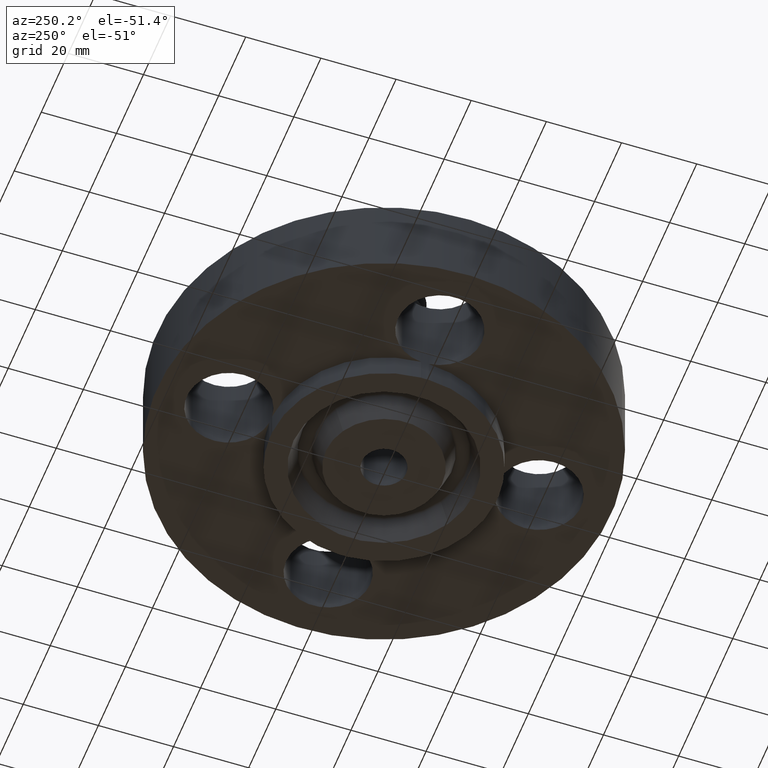
[diagram: clean part render]
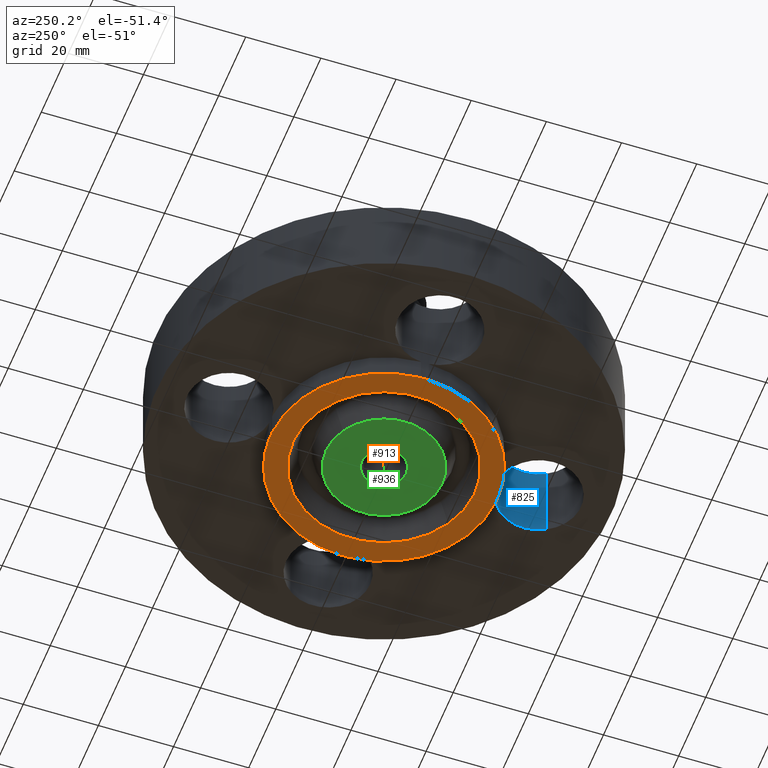
[diagram: same view with three faces highlighted in distinct colors, each labeled with its STEP entity id]
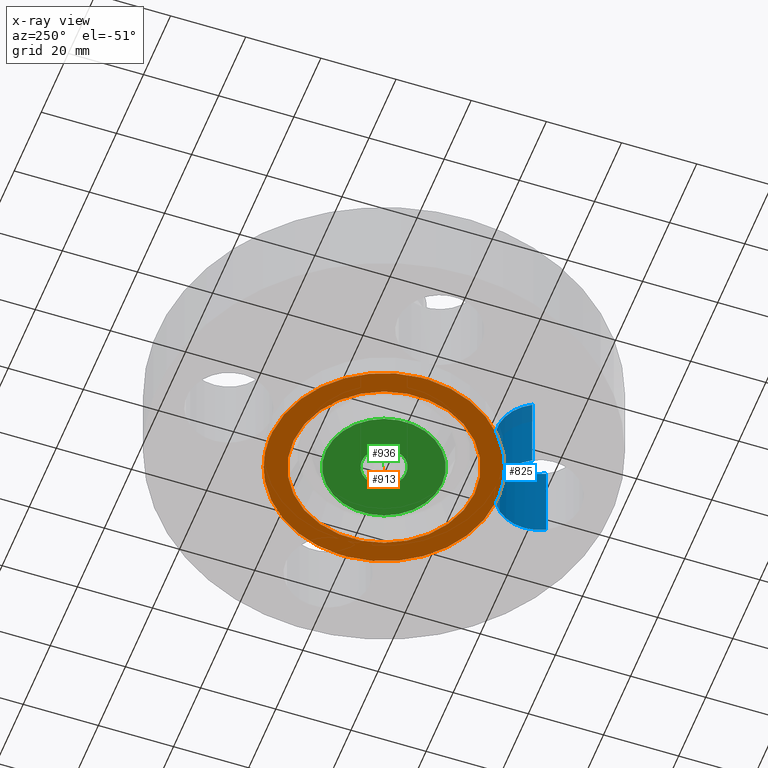
[diagram: x-ray of the same camera — body ghosted, the three highlighted faces saturated]
A machine part, auxiliary view with three faces highlighted in distinct colors.
The next image is the same camera in x-ray (body ghosted, the three faces saturated) — at least one of them is partly hidden behind the body in this view.
Their STEP definitions:

[orange] entity #913 — the highlighted planar face has unit normal (0, 0, -1).
#91=AXIS2_PLACEMENT_3D('Circle Axis2P3D',#89,#90,$) ;
#145=AXIS2_PLACEMENT_3D('Circle Axis2P3D',#143,#144,$) ;
#489=AXIS2_PLACEMENT_3D('Circle Axis2P3D',#487,#488,$) ;
#531=AXIS2_PLACEMENT_3D('Circle Axis2P3D',#529,#530,$) ;
#550=AXIS2_PLACEMENT_3D('Circle Axis2P3D',#548,#549,$) ;
#592=AXIS2_PLACEMENT_3D('Circle Axis2P3D',#590,#591,$) ;
#611=AXIS2_PLACEMENT_3D('Circle Axis2P3D',#609,#610,$) ;
#755=AXIS2_PLACEMENT_3D('Circle Axis2P3D',#753,#754,$) ;
#807=AXIS2_PLACEMENT_3D('Circle Axis2P3D',#805,#806,$) ;
#859=AXIS2_PLACEMENT_3D('Circle Axis2P3D',#857,#858,$) ;
#881=AXIS2_PLACEMENT_3D('Plane Axis2P3D',#878,#879,#880) ;
#897=AXIS2_PLACEMENT_3D('Circle Axis2P3D',#895,#896,$) ;
#906=AXIS2_PLACEMENT_3D('Circle Axis2P3D',#904,#905,$) ;
#86=CARTESIAN_POINT('Vertex',(0.0400333532821,1.186825,-0.250000000001)) ;
#89=CARTESIAN_POINT('Axis2P3D Location',(0.,1.62500000001,-0.250000000001)) ;
#93=CARTESIAN_POINT('Vertex',(-0.0400333532821,1.186825,-0.250000000001)) ;
#140=CARTESIAN_POINT('Vertex',(0.569317827095,1.04212929225,-0.250000000001)) ;
#143=CARTESIAN_POINT('Axis2P3D Location',(0.,0.,-0.250000000001)) ;
#487=CARTESIAN_POINT('Axis2P3D Location',(0.,0.,-0.250000000001)) ;
#491=CARTESIAN_POINT('Vertex',(-0.569317827095,-1.04212929225,-0.250000000001)) ;
#493=CARTESIAN_POINT('Vertex',(-1.186825,-0.0400333532821,-0.250000000001)) ;
#529=CARTESIAN_POINT('Axis2P3D Location',(0.,0.,-0.250000000001)) ;
#533=CARTESIAN_POINT('Vertex',(-1.186825,0.0400333532821,-0.250000000001)) ;
#548=CARTESIAN_POINT('Axis2P3D Location',(0.,0.,-0.250000000001)) ;
#552=CARTESIAN_POINT('Vertex',(1.186825,-0.0400333532821,-0.250000000001)) ;
#554=CARTESIAN_POINT('Vertex',(0.0400333532821,-1.186825,-0.250000000001)) ;
#590=CARTESIAN_POINT('Axis2P3D Location',(0.,0.,-0.250000000001)) ;
#594=CARTESIAN_POINT('Vertex',(-0.0400333532821,-1.186825,-0.250000000001)) ;
#609=CARTESIAN_POINT('Axis2P3D Location',(0.,0.,-0.250000000001)) ;
#613=CARTESIAN_POINT('Vertex',(1.186825,0.0400333532821,-0.250000000001)) ;
#753=CARTESIAN_POINT('Axis2P3D Location',(1.62500000001,-1.8023868212E-016,-0.250000000001)) ;
#805=CARTESIAN_POINT('Axis2P3D Location',(1.99005104862E-016,-1.62500000001,-0.250000000001)) ;
#857=CARTESIAN_POINT('Axis2P3D Location',(-1.62500000001,-2.98507657293E-016,-0.250000000001)) ;
#878=CARTESIAN_POINT('Axis2P3D Location',(0.,0.232000000001,-0.250000000001)) ;
#895=CARTESIAN_POINT('Axis2P3D Location',(3.49676543189E-017,-1.74838271595E-016,-0.250000000001)) ;
#899=CARTESIAN_POINT('Vertex',(0.457132251061,-0.836774972766,-0.250000000001)) ;
#901=CARTESIAN_POINT('Vertex',(-0.457132251061,0.836774972766,-0.250000000001)) ;
#904=CARTESIAN_POINT('Axis2P3D Location',(1.74838271595E-016,1.04902962957E-016,-0.250000000001)) ;
#90=DIRECTION('Axis2P3D Direction',(0.,-0.,-0.0393700787402)) ;
#144=DIRECTION('Axis2P3D Direction',(0.,0.,-0.0393700787402)) ;
#488=DIRECTION('Axis2P3D Direction',(0.,0.,-0.0393700787402)) ;
#530=DIRECTION('Axis2P3D Direction',(0.,0.,-0.0393700787402)) ;
#549=DIRECTION('Axis2P3D Direction',(0.,0.,-0.0393700787402)) ;
#591=DIRECTION('Axis2P3D Direction',(0.,0.,-0.0393700787402)) ;
#610=DIRECTION('Axis2P3D Direction',(0.,0.,-0.0393700787402)) ;
#754=DIRECTION('Axis2P3D Direction',(0.,-0.,-0.0393700787402)) ;
#806=DIRECTION('Axis2P3D Direction',(-0.,0.,-0.0393700787402)) ;
#858=DIRECTION('Axis2P3D Direction',(0.,0.,-0.0393700787402)) ;
#879=DIRECTION('Axis2P3D Direction',(0.,0.,-0.0393700787402)) ;
#880=DIRECTION('Axis2P3D XDirection',(0.0393700787402,0.,0.)) ;
#896=DIRECTION('Axis2P3D Direction',(0.,0.,-0.0393700787402)) ;
#905=DIRECTION('Axis2P3D Direction',(0.,0.,-0.0393700787402)) ;
#884=ORIENTED_EDGE('',*,*,#556,.T.) ;
#885=ORIENTED_EDGE('',*,*,#809,.F.) ;
#886=ORIENTED_EDGE('',*,*,#596,.T.) ;
#887=ORIENTED_EDGE('',*,*,#495,.T.) ;
#888=ORIENTED_EDGE('',*,*,#861,.F.) ;
#889=ORIENTED_EDGE('',*,*,#535,.T.) ;
#890=ORIENTED_EDGE('',*,*,#95,.F.) ;
#891=ORIENTED_EDGE('',*,*,#147,.T.) ;
#892=ORIENTED_EDGE('',*,*,#615,.T.) ;
#893=ORIENTED_EDGE('',*,*,#757,.F.) ;
#910=ORIENTED_EDGE('',*,*,#903,.F.) ;
#911=ORIENTED_EDGE('',*,*,#908,.F.) ;
#912=FACE_BOUND('',#909,.T.) ;
#913=ADVANCED_FACE('PartBody',(#894,#912),#882,.T.) ;
#92=CIRCLE('generated circle',#91,0.440000000002) ;
#146=CIRCLE('generated circle',#145,1.1875) ;
#490=CIRCLE('generated circle',#489,1.1875) ;
#532=CIRCLE('generated circle',#531,1.1875) ;
#551=CIRCLE('generated circle',#550,1.1875) ;
#593=CIRCLE('generated circle',#592,1.1875) ;
#612=CIRCLE('generated circle',#611,1.1875) ;
#756=CIRCLE('generated circle',#755,0.440000000002) ;
#808=CIRCLE('generated circle',#807,0.440000000002) ;
#860=CIRCLE('generated circle',#859,0.440000000002) ;
#898=CIRCLE('generated circle',#897,0.953500000004) ;
#907=CIRCLE('generated circle',#906,0.953500000004) ;
#95=EDGE_CURVE('',#87,#94,#92,.T.) ;
#147=EDGE_CURVE('',#87,#141,#146,.T.) ;
#495=EDGE_CURVE('',#492,#494,#490,.T.) ;
#535=EDGE_CURVE('',#534,#94,#532,.T.) ;
#556=EDGE_CURVE('',#553,#555,#551,.T.) ;
#596=EDGE_CURVE('',#595,#492,#593,.T.) ;
#615=EDGE_CURVE('',#141,#614,#612,.T.) ;
#757=EDGE_CURVE('',#553,#614,#756,.T.) ;
#809=EDGE_CURVE('',#595,#555,#808,.T.) ;
#861=EDGE_CURVE('',#534,#494,#860,.T.) ;
#903=EDGE_CURVE('',#900,#902,#898,.T.) ;
#908=EDGE_CURVE('',#902,#900,#907,.T.) ;
#883=EDGE_LOOP('',(#884,#885,#886,#887,#888,#889,#890,#891,#892,#893)) ;
#909=EDGE_LOOP('',(#910,#911)) ;
#894=FACE_OUTER_BOUND('',#883,.T.) ;
#882=PLANE('',#881) ;
#87=VERTEX_POINT('',#86) ;
#94=VERTEX_POINT('',#93) ;
#141=VERTEX_POINT('',#140) ;
#492=VERTEX_POINT('',#491) ;
#494=VERTEX_POINT('',#493) ;
#534=VERTEX_POINT('',#533) ;
#553=VERTEX_POINT('',#552) ;
#555=VERTEX_POINT('',#554) ;
#595=VERTEX_POINT('',#594) ;
#614=VERTEX_POINT('',#613) ;
#900=VERTEX_POINT('',#899) ;
#902=VERTEX_POINT('',#901) ;

[blue] entity #825 — the highlighted cylindrical surface (partial cylindrical patch) has radius 11.176 mm, axis along (-0, 0, -1).
#684=AXIS2_PLACEMENT_3D('Circle Axis2P3D',#682,#683,$) ;
#698=AXIS2_PLACEMENT_3D('Circle Axis2P3D',#696,#697,$) ;
#777=AXIS2_PLACEMENT_3D('Cylinder Axis2P3D',#774,#775,#776) ;
#807=AXIS2_PLACEMENT_3D('Circle Axis2P3D',#805,#806,$) ;
#812=AXIS2_PLACEMENT_3D('Circle Axis2P3D',#810,#811,$) ;
#554=CARTESIAN_POINT('Vertex',(0.0400333532821,-1.186825,-0.250000000001)) ;
#568=CARTESIAN_POINT('Vertex',(0.0400333532821,-1.186825,0.)) ;
#571=CARTESIAN_POINT('Line Origine',(0.0400333532821,-1.186825,-0.125000000001)) ;
#587=CARTESIAN_POINT('Vertex',(-0.0400333532821,-1.186825,0.)) ;
#594=CARTESIAN_POINT('Vertex',(-0.0400333532821,-1.186825,-0.250000000001)) ;
#597=CARTESIAN_POINT('Line Origine',(-0.0400333532821,-1.186825,-0.125000000001)) ;
#682=CARTESIAN_POINT('Axis2P3D Location',(2.97225061711E-016,-1.62500000001,0.)) ;
#686=CARTESIAN_POINT('Vertex',(-0.386136327233,-1.41405276302,0.)) ;
#693=CARTESIAN_POINT('Vertex',(0.386136327233,-1.83594723699,0.)) ;
#696=CARTESIAN_POINT('Axis2P3D Location',(2.97225061711E-016,-1.62500000001,0.)) ;
#774=CARTESIAN_POINT('Axis2P3D Location',(1.99005104862E-016,-1.62500000001,0.87606299213)) ;
#779=CARTESIAN_POINT('Line Origine',(0.386136327233,-1.83594723699,0.315000000001)) ;
#783=CARTESIAN_POINT('Vertex',(0.386136327233,-1.83594723699,0.880000000004)) ;
#786=CARTESIAN_POINT('Line Origine',(-0.386136327233,-1.41405276302,0.315000000001)) ;
#790=CARTESIAN_POINT('Vertex',(-0.386136327233,-1.41405276302,0.880000000004)) ;
#805=CARTESIAN_POINT('Axis2P3D Location',(1.99005104862E-016,-1.62500000001,-0.250000000001)) ;
#810=CARTESIAN_POINT('Axis2P3D Location',(1.99005104862E-016,-1.62500000001,0.880000000004)) ;
#572=DIRECTION('Vector Direction',(0.,0.,-0.0393700787402)) ;
#598=DIRECTION('Vector Direction',(0.,0.,-0.0393700787402)) ;
#683=DIRECTION('Axis2P3D Direction',(0.,0.,-0.0393700787402)) ;
#697=DIRECTION('Axis2P3D Direction',(0.,0.,-0.0393700787402)) ;
#775=DIRECTION('Axis2P3D Direction',(-0.,0.,-0.0393700787402)) ;
#776=DIRECTION('Axis2P3D XDirection',(-0.0345504945626,0.0188750212049,0.)) ;
#780=DIRECTION('Vector Direction',(0.,0.,-0.0393700787402)) ;
#787=DIRECTION('Vector Direction',(0.,0.,-0.0393700787402)) ;
#806=DIRECTION('Axis2P3D Direction',(-0.,0.,-0.0393700787402)) ;
#811=DIRECTION('Axis2P3D Direction',(-0.,0.,-0.0393700787402)) ;
#573=VECTOR('Line Direction',#572,0.0393700787402) ;
#599=VECTOR('Line Direction',#598,0.0393700787402) ;
#781=VECTOR('Line Direction',#780,0.0393700787402) ;
#788=VECTOR('Line Direction',#787,0.0393700787402) ;
#816=ORIENTED_EDGE('',*,*,#792,.F.) ;
#817=ORIENTED_EDGE('',*,*,#688,.T.) ;
#818=ORIENTED_EDGE('',*,*,#601,.T.) ;
#819=ORIENTED_EDGE('',*,*,#809,.T.) ;
#820=ORIENTED_EDGE('',*,*,#575,.F.) ;
#821=ORIENTED_EDGE('',*,*,#700,.T.) ;
#822=ORIENTED_EDGE('',*,*,#785,.T.) ;
#823=ORIENTED_EDGE('',*,*,#814,.F.) ;
#825=ADVANCED_FACE('PartBody',(#824),#778,.F.) ;
#685=CIRCLE('generated circle',#684,0.440000000002) ;
#699=CIRCLE('generated circle',#698,0.440000000002) ;
#808=CIRCLE('generated circle',#807,0.440000000002) ;
#813=CIRCLE('generated circle',#812,0.440000000002) ;
#778=CYLINDRICAL_SURFACE('generated cylinder',#777,0.440000000002) ;
#575=EDGE_CURVE('',#569,#555,#574,.T.) ;
#601=EDGE_CURVE('',#588,#595,#600,.T.) ;
#688=EDGE_CURVE('',#687,#588,#685,.T.) ;
#700=EDGE_CURVE('',#569,#694,#699,.T.) ;
#785=EDGE_CURVE('',#694,#784,#782,.F.) ;
#792=EDGE_CURVE('',#687,#791,#789,.F.) ;
#809=EDGE_CURVE('',#595,#555,#808,.T.) ;
#814=EDGE_CURVE('',#791,#784,#813,.T.) ;
#815=EDGE_LOOP('',(#816,#817,#818,#819,#820,#821,#822,#823)) ;
#824=FACE_OUTER_BOUND('',#815,.T.) ;
#574=LINE('Line',#571,#573) ;
#600=LINE('Line',#597,#599) ;
#782=LINE('Line',#779,#781) ;
#789=LINE('Line',#786,#788) ;
#555=VERTEX_POINT('',#554) ;
#569=VERTEX_POINT('',#568) ;
#588=VERTEX_POINT('',#587) ;
#595=VERTEX_POINT('',#594) ;
#687=VERTEX_POINT('',#686) ;
#694=VERTEX_POINT('',#693) ;
#784=VERTEX_POINT('',#783) ;
#791=VERTEX_POINT('',#790) ;

[green] entity #936 — the highlighted planar face has unit normal (0, 0, -1).
#458=AXIS2_PLACEMENT_3D('Circle Axis2P3D',#456,#457,$) ;
#477=AXIS2_PLACEMENT_3D('Circle Axis2P3D',#475,#476,$) ;
#881=AXIS2_PLACEMENT_3D('Plane Axis2P3D',#878,#879,#880) ;
#916=AXIS2_PLACEMENT_3D('Circle Axis2P3D',#914,#915,$) ;
#925=AXIS2_PLACEMENT_3D('Circle Axis2P3D',#923,#924,$) ;
#453=CARTESIAN_POINT('Vertex',(-0.111226724957,-0.203599154359,-0.250000000001)) ;
#456=CARTESIAN_POINT('Axis2P3D Location',(0.,0.,-0.250000000001)) ;
#460=CARTESIAN_POINT('Vertex',(0.111226724957,0.203599154359,-0.250000000001)) ;
#475=CARTESIAN_POINT('Axis2P3D Location',(0.,0.,-0.250000000001)) ;
#878=CARTESIAN_POINT('Axis2P3D Location',(0.,0.232000000001,-0.250000000001)) ;
#914=CARTESIAN_POINT('Axis2P3D Location',(-6.99353086378E-017,6.99353086378E-017,-0.250000000001)) ;
#918=CARTESIAN_POINT('Vertex',(-0.29220986578,0.534886571474,-0.250000000001)) ;
#920=CARTESIAN_POINT('Vertex',(0.29220986578,-0.534886571474,-0.250000000001)) ;
#923=CARTESIAN_POINT('Axis2P3D Location',(6.99353086378E-017,0.,-0.250000000001)) ;
#457=DIRECTION('Axis2P3D Direction',(0.,0.,-0.0393700787402)) ;
#476=DIRECTION('Axis2P3D Direction',(0.,0.,-0.0393700787402)) ;
#879=DIRECTION('Axis2P3D Direction',(0.,0.,-0.0393700787402)) ;
#880=DIRECTION('Axis2P3D XDirection',(0.0393700787402,0.,0.)) ;
#915=DIRECTION('Axis2P3D Direction',(0.,0.,-0.0393700787402)) ;
#924=DIRECTION('Axis2P3D Direction',(0.,0.,-0.0393700787402)) ;
#929=ORIENTED_EDGE('',*,*,#922,.T.) ;
#930=ORIENTED_EDGE('',*,*,#927,.T.) ;
#933=ORIENTED_EDGE('',*,*,#479,.F.) ;
#934=ORIENTED_EDGE('',*,*,#462,.F.) ;
#935=FACE_BOUND('',#932,.T.) ;
#936=ADVANCED_FACE('PartBody',(#931,#935),#882,.T.) ;
#459=CIRCLE('generated circle',#458,0.232000000001) ;
#478=CIRCLE('generated circle',#477,0.232000000001) ;
#917=CIRCLE('generated circle',#916,0.609500000002) ;
#926=CIRCLE('generated circle',#925,0.609500000002) ;
#462=EDGE_CURVE('',#454,#461,#459,.T.) ;
#479=EDGE_CURVE('',#461,#454,#478,.T.) ;
#922=EDGE_CURVE('',#919,#921,#917,.T.) ;
#927=EDGE_CURVE('',#921,#919,#926,.T.) ;
#928=EDGE_LOOP('',(#929,#930)) ;
#932=EDGE_LOOP('',(#933,#934)) ;
#931=FACE_OUTER_BOUND('',#928,.T.) ;
#882=PLANE('',#881) ;
#454=VERTEX_POINT('',#453) ;
#461=VERTEX_POINT('',#460) ;
#919=VERTEX_POINT('',#918) ;
#921=VERTEX_POINT('',#920) ;